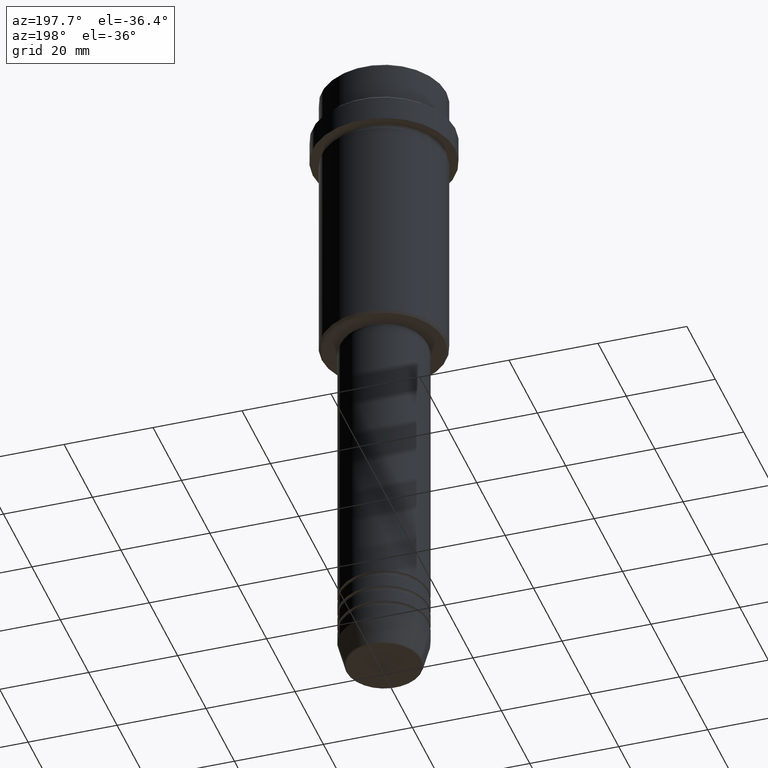
[diagram: clean part render]
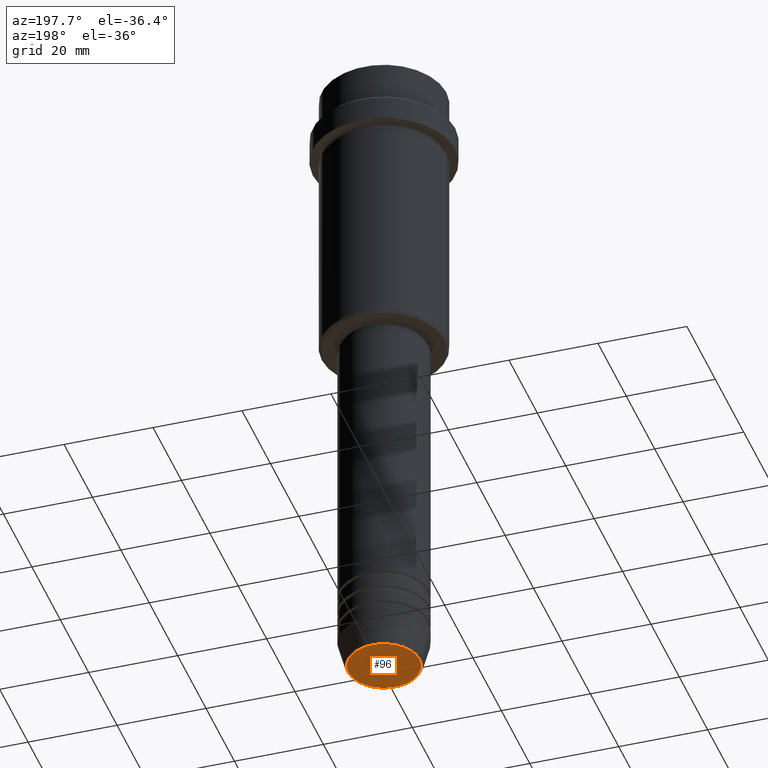
[diagram: same view with one face highlighted and labeled with its STEP entity id]
A machine part, auxiliary view. The second image highlights one B-rep face of the part: STEP entity #96.
In plain terms, the highlighted planar face has unit normal (0, -0, 1).
Its self-contained STEP definition (entity closure, byte-faithful):
#26 = DIRECTION ( 'NONE',  ( 0.000000000000000000, 0.000000000000000000, -1.000000000000000000 ) ) ;
#73 = CARTESIAN_POINT ( 'NONE',  ( -8.008641351423783306, 1.010348648938493172E-15, -150.0000000000000284 ) ) ;
#96 = ADVANCED_FACE ( 'NONE', ( #1017 ), #391, .F. ) ;
#116 = CARTESIAN_POINT ( 'NONE',  ( 0.000000000000000000, 0.000000000000000000, -150.0000000000000284 ) ) ;
#135 = DIRECTION ( 'NONE',  ( 1.000000000000000000, 0.000000000000000000, 0.000000000000000000 ) ) ;
#156 = CARTESIAN_POINT ( 'NONE',  ( 0.000000000000000000, 0.000000000000000000, -150.0000000000000284 ) ) ;
#187 = AXIS2_PLACEMENT_3D ( 'NONE', #607, #505, #1360 ) ;
#204 = ORIENTED_EDGE ( 'NONE', *, *, #1339, .T. ) ;
#225 = AXIS2_PLACEMENT_3D ( 'NONE', #156, #26, #1225 ) ;
#391 = PLANE ( 'NONE',  #187 ) ;
#505 = DIRECTION ( 'NONE',  ( 0.000000000000000000, -0.000000000000000000, 1.000000000000000000 ) ) ;
#546 = CARTESIAN_POINT ( 'NONE',  ( 8.008641351423783306, 0.000000000000000000, -150.0000000000000284 ) ) ;
#568 = DIRECTION ( 'NONE',  ( 0.000000000000000000, 0.000000000000000000, -1.000000000000000000 ) ) ;
#607 = CARTESIAN_POINT ( 'NONE',  ( 0.000000000000000000, 0.000000000000000000, -150.0000000000000284 ) ) ;
#610 = CIRCLE ( 'NONE', #794, 8.008641351423783306 ) ;
#634 = ORIENTED_EDGE ( 'NONE', *, *, #942, .T. ) ;
#656 = EDGE_LOOP ( 'NONE', ( #204, #634 ) ) ;
#782 = VERTEX_POINT ( 'NONE', #73 ) ;
#794 = AXIS2_PLACEMENT_3D ( 'NONE', #116, #568, #135 ) ;
#872 = CIRCLE ( 'NONE', #225, 8.008641351423783306 ) ;
#942 = EDGE_CURVE ( 'NONE', #782, #1407, #872, .T. ) ;
#1017 = FACE_OUTER_BOUND ( 'NONE', #656, .T. ) ;
#1225 = DIRECTION ( 'NONE',  ( 1.000000000000000000, 0.000000000000000000, 0.000000000000000000 ) ) ;
#1339 = EDGE_CURVE ( 'NONE', #1407, #782, #610, .T. ) ;
#1360 = DIRECTION ( 'NONE',  ( 1.000000000000000000, 0.000000000000000000, 0.000000000000000000 ) ) ;
#1407 = VERTEX_POINT ( 'NONE', #546 ) ;